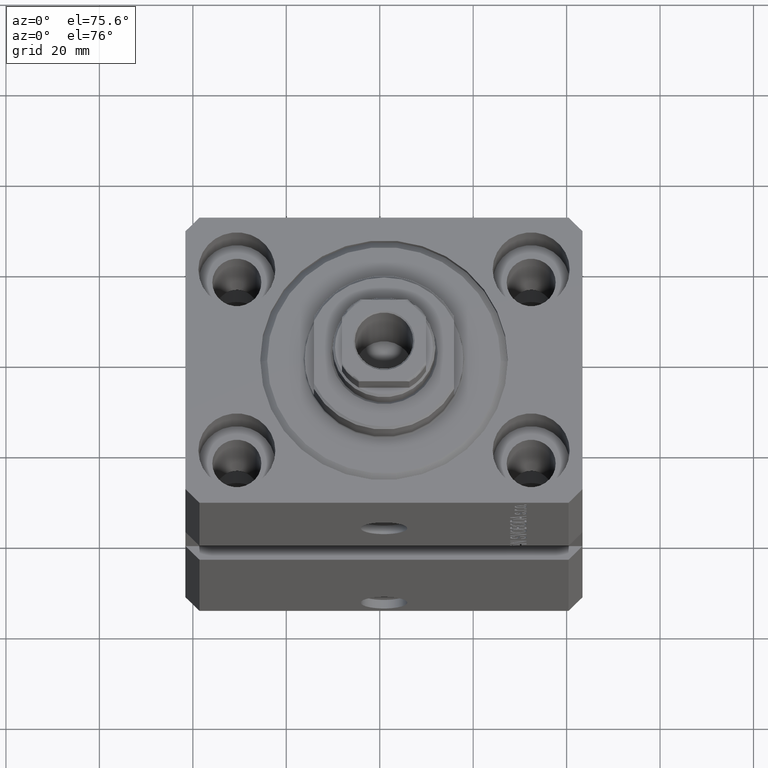
[diagram: clean part render]
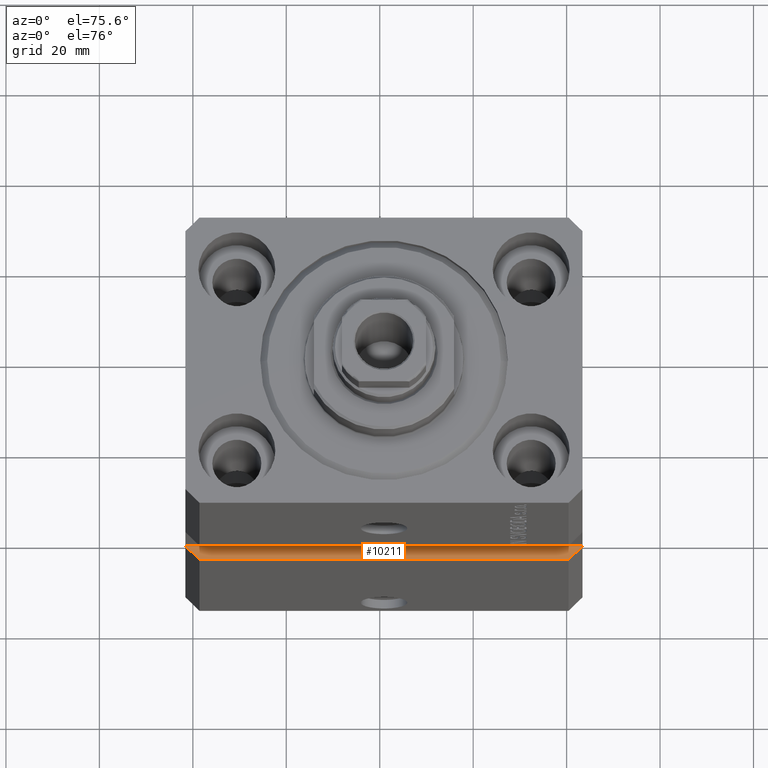
[diagram: same view with one face highlighted and labeled with its STEP entity id]
A machine part, auxiliary view. The second image highlights one B-rep face of the part: STEP entity #10211.
In plain terms, the highlighted planar face has unit normal (0, 0, -1).
Its self-contained STEP definition (entity closure, byte-faithful):
#1704 = DIRECTION ( 'NONE',  ( 1.000000000000000000, 1.632680918566406300E-16, 0.000000000000000000 ) ) ;
#5525 = CARTESIAN_POINT ( 'NONE',  ( -42.50000000000000000, -28.50000000000000711, -48.99999999999999289 ) ) ;
#5676 = EDGE_LOOP ( 'NONE', ( #24190, #42020, #20015, #40048 ) ) ;
#8436 = EDGE_CURVE ( 'NONE', #43641, #12675, #42811, .T. ) ;
#9573 = LINE ( 'NONE', #20406, #16605 ) ;
#9797 = LINE ( 'NONE', #47337, #42528 ) ;
#10211 = ADVANCED_FACE ( 'NONE', ( #20537 ), #20058, .F. ) ;
#11950 = EDGE_CURVE ( 'NONE', #28489, #23591, #9797, .T. ) ;
#12675 = VERTEX_POINT ( 'NONE', #23118 ) ;
#15886 = VECTOR ( 'NONE', #20193, 1000.000000000000000 ) ;
#16605 = VECTOR ( 'NONE', #43025, 1000.000000000000000 ) ;
#19820 = DIRECTION ( 'NONE',  ( -1.000000000000000000, 0.000000000000000000, -0.000000000000000000 ) ) ;
#20015 = ORIENTED_EDGE ( 'NONE', *, *, #33463, .T. ) ;
#20058 = PLANE ( 'NONE',  #47073 ) ;
#20193 = DIRECTION ( 'NONE',  ( 1.000000000000000000, 1.632680918566406300E-16, 0.000000000000000000 ) ) ;
#20406 = CARTESIAN_POINT ( 'NONE',  ( 39.50000000000000711, -31.50000000000000000, -48.99999999999999289 ) ) ;
#20537 = FACE_OUTER_BOUND ( 'NONE', #5676, .T. ) ;
#20781 = CARTESIAN_POINT ( 'NONE',  ( -42.50000000000000000, -28.50000000000000711, -48.99999999999999289 ) ) ;
#22514 = EDGE_CURVE ( 'NONE', #23591, #12675, #9573, .T. ) ;
#23118 = CARTESIAN_POINT ( 'NONE',  ( 42.50000000000001421, -28.49999999999999289, -48.99999999999999289 ) ) ;
#23591 = VERTEX_POINT ( 'NONE', #29543 ) ;
#24190 = ORIENTED_EDGE ( 'NONE', *, *, #22514, .T. ) ;
#27515 = DIRECTION ( 'NONE',  ( 0.000000000000000000, 0.000000000000000000, -1.000000000000000000 ) ) ;
#28489 = VERTEX_POINT ( 'NONE', #42646 ) ;
#28912 = CARTESIAN_POINT ( 'NONE',  ( -42.50000000000000000, -28.50000000000000000, -48.99999999999999289 ) ) ;
#29543 = CARTESIAN_POINT ( 'NONE',  ( 39.50000000000001421, -31.49999999999999289, -48.99999999999999289 ) ) ;
#30213 = CARTESIAN_POINT ( 'NONE',  ( -42.50000000000000000, -28.50000000000000711, -48.99999999999999289 ) ) ;
#31492 = VECTOR ( 'NONE', #36613, 1000.000000000000000 ) ;
#32762 = LINE ( 'NONE', #28912, #31492 ) ;
#33463 = EDGE_CURVE ( 'NONE', #43641, #28489, #32762, .T. ) ;
#36613 = DIRECTION ( 'NONE',  ( 0.7071067811865471286, -0.7071067811865479058, 0.000000000000000000 ) ) ;
#40048 = ORIENTED_EDGE ( 'NONE', *, *, #11950, .T. ) ;
#42020 = ORIENTED_EDGE ( 'NONE', *, *, #8436, .F. ) ;
#42528 = VECTOR ( 'NONE', #1704, 1000.000000000000000 ) ;
#42646 = CARTESIAN_POINT ( 'NONE',  ( -39.50000000000000000, -31.50000000000000711, -48.99999999999999289 ) ) ;
#42811 = LINE ( 'NONE', #5525, #15886 ) ;
#43025 = DIRECTION ( 'NONE',  ( 0.7071067811865483499, 0.7071067811865466846, 0.000000000000000000 ) ) ;
#43641 = VERTEX_POINT ( 'NONE', #30213 ) ;
#47073 = AXIS2_PLACEMENT_3D ( 'NONE', #20781, #27515, #19820 ) ;
#47337 = CARTESIAN_POINT ( 'NONE',  ( -42.50000000000000000, -31.50000000000000711, -48.99999999999999289 ) ) ;